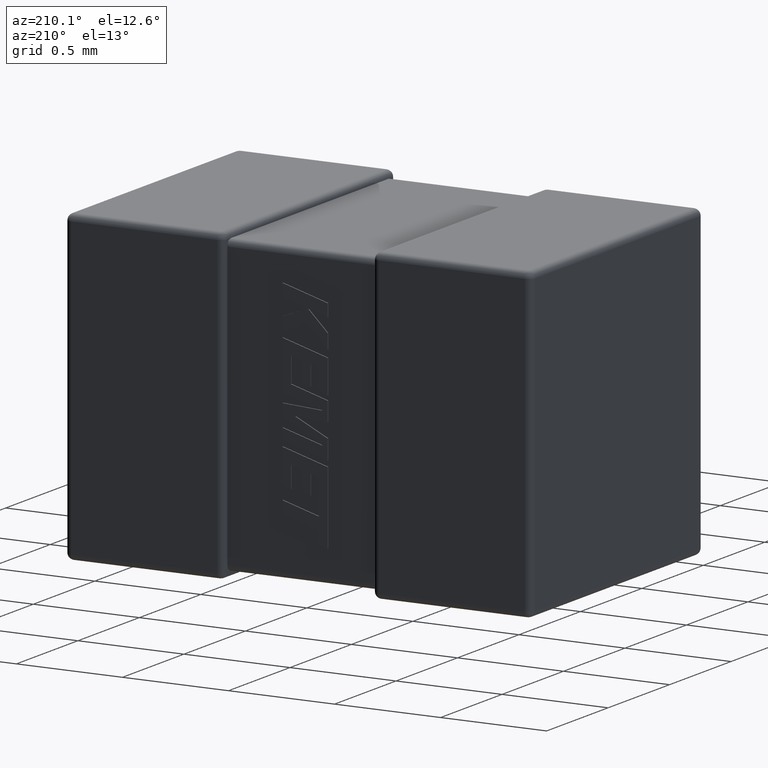
[diagram: clean part render]
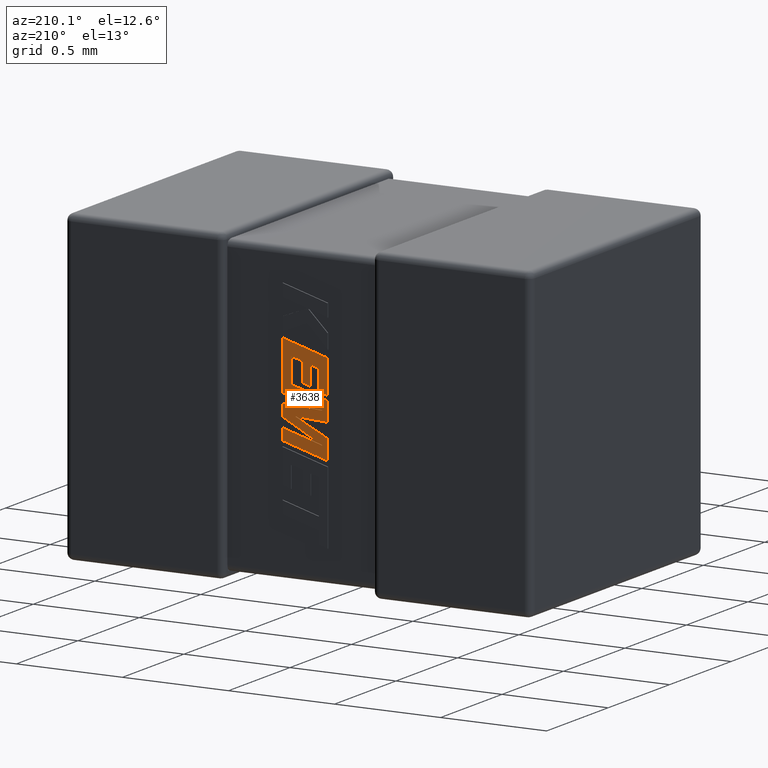
[diagram: same view with one face highlighted and labeled with its STEP entity id]
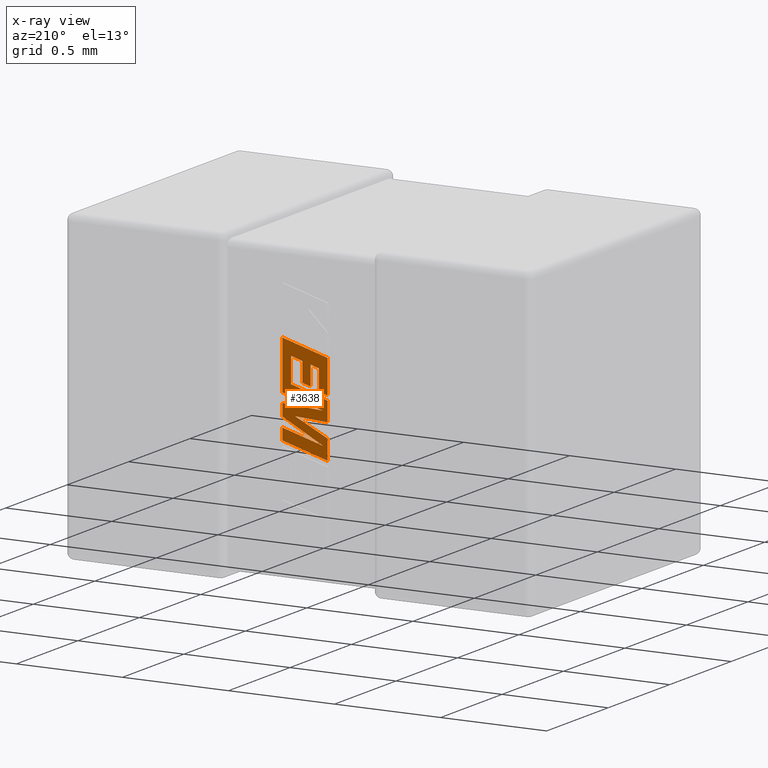
[diagram: x-ray of the same camera — body ghosted, the highlighted face saturated]
A machine part, auxiliary view. The second image highlights one B-rep face of the part: STEP entity #3638.
The next image is the same camera in x-ray: the body ghosted, the highlighted face saturated — about 0% of this face is hidden behind the body in this view.
In plain terms, the highlighted planar face has unit normal (0, -1, 0).
Its self-contained STEP definition (entity closure, byte-faithful):
#11 = LINE ( 'NONE', #1206, #3845 ) ;
#74 = CARTESIAN_POINT ( 'NONE',  ( 1.015409025108017671, 1.374840000000000062, -0.5203156576566413394 ) ) ;
#93 = EDGE_CURVE ( 'NONE', #3024, #649, #2750, .T. ) ;
#131 = CARTESIAN_POINT ( 'NONE',  ( 1.094464961500362321, 1.374840000000000062, -0.4975356530611448891 ) ) ;
#179 = LINE ( 'NONE', #1595, #3183 ) ;
#211 = DIRECTION ( 'NONE',  ( 0.000000000000000000, 0.000000000000000000, 1.000000000000000000 ) ) ;
#215 = CARTESIAN_POINT ( 'NONE',  ( 0.9748339648551366254, 1.374840000000000062, -0.6502224806510179533 ) ) ;
#221 = EDGE_CURVE ( 'NONE', #2082, #2583, #576, .T. ) ;
#223 = VECTOR ( 'NONE', #3756, 1000.000000000000227 ) ;
#240 = ORIENTED_EDGE ( 'NONE', *, *, #1883, .T. ) ;
#245 = VECTOR ( 'NONE', #2053, 1000.000000000000114 ) ;
#258 = LINE ( 'NONE', #3456, #223 ) ;
#260 = CARTESIAN_POINT ( 'NONE',  ( 0.9748339648551366254, 1.374840000000000062, -0.8083347367239003267 ) ) ;
#299 = EDGE_CURVE ( 'NONE', #1758, #3024, #902, .T. ) ;
#344 = DIRECTION ( 'NONE',  ( 0.9611542233438713501, 0.000000000000000000, 0.2760118818968482213 ) ) ;
#352 = EDGE_CURVE ( 'NONE', #1316, #1758, #1457, .T. ) ;
#364 = ORIENTED_EDGE ( 'NONE', *, *, #3814, .T. ) ;
#367 = EDGE_CURVE ( 'NONE', #2403, #4102, #3121, .T. ) ;
#371 = CARTESIAN_POINT ( 'NONE',  ( 1.015409025108017671, 1.374840000000000062, -0.6174362815830839457 ) ) ;
#375 = CARTESIAN_POINT ( 'NONE',  ( 1.188000000000003498, 1.374840000000000062, -0.7404661952629607580 ) ) ;
#384 = EDGE_CURVE ( 'NONE', #3827, #2746, #2487, .T. ) ;
#389 = ORIENTED_EDGE ( 'NONE', *, *, #93, .T. ) ;
#442 = EDGE_LOOP ( 'NONE', ( #515, #3050, #2345, #2785, #2269, #389, #1620, #364, #1552, #1265, #2026, #666, #4509, #240, #2134, #960, #2652, #3323, #3562, #2277, #4370, #2938, #3568 ) ) ;
#452 = CARTESIAN_POINT ( 'NONE',  ( -0.2425353559703316564, 1.374840000000000062, 0.003280988965688323017 ) ) ;
#503 = VECTOR ( 'NONE', #1230, 1000.000000000000227 ) ;
#508 = CARTESIAN_POINT ( 'NONE',  ( 1.188000000000003498, 1.374840000000000062, -0.4101399247972486450 ) ) ;
#515 = ORIENTED_EDGE ( 'NONE', *, *, #3334, .T. ) ;
#576 = LINE ( 'NONE', #1965, #1124 ) ;
#585 = CARTESIAN_POINT ( 'NONE',  ( 1.094464961500362321, 1.374840000000000062, -0.4975356530611448891 ) ) ;
#649 = VERTEX_POINT ( 'NONE', #2027 ) ;
#659 = LINE ( 'NONE', #4526, #2670 ) ;
#666 = ORIENTED_EDGE ( 'NONE', *, *, #2854, .T. ) ;
#685 = VECTOR ( 'NONE', #2129, 1000.000000000000000 ) ;
#687 = CARTESIAN_POINT ( 'NONE',  ( 1.094464961500362321, 1.374840000000000062, -0.5890160448136516624 ) ) ;
#722 = CARTESIAN_POINT ( 'NONE',  ( 1.015409025108017671, 1.374840000000000062, -0.6174362815830839457 ) ) ;
#731 = CARTESIAN_POINT ( 'NONE',  ( 1.127122519210145501, 1.374840000000000062, -0.7328045973124587276 ) ) ;
#790 = DIRECTION ( 'NONE',  ( 0.000000000000000000, 0.000000000000000000, -1.000000000000000000 ) ) ;
#812 = CARTESIAN_POINT ( 'NONE',  ( 0.9748339648551366254, 1.374840000000000062, -0.7410023534756597918 ) ) ;
#823 = LINE ( 'NONE', #2496, #1222 ) ;
#902 = LINE ( 'NONE', #215, #1496 ) ;
#948 = LINE ( 'NONE', #2029, #4139 ) ;
#950 = EDGE_CURVE ( 'NONE', #1699, #1316, #1071, .T. ) ;
#960 = ORIENTED_EDGE ( 'NONE', *, *, #2717, .T. ) ;
#998 = LINE ( 'NONE', #3167, #245 ) ;
#1071 = LINE ( 'NONE', #731, #3311 ) ;
#1097 = VERTEX_POINT ( 'NONE', #2584 ) ;
#1124 = VECTOR ( 'NONE', #2314, 1000.000000000000000 ) ;
#1148 = EDGE_CURVE ( 'NONE', #4102, #4551, #3731, .T. ) ;
#1190 = CARTESIAN_POINT ( 'NONE',  ( 1.015409025108017671, 1.374840000000000062, -0.5203156576566413394 ) ) ;
#1194 = FACE_OUTER_BOUND ( 'NONE', #442, .T. ) ;
#1198 = VECTOR ( 'NONE', #3807, 1000.000000000000000 ) ;
#1202 = VECTOR ( 'NONE', #790, 1000.000000000000000 ) ;
#1206 = CARTESIAN_POINT ( 'NONE',  ( 0.9748339648551366254, 1.374840000000000062, -0.6289604516652645971 ) ) ;
#1222 = VECTOR ( 'NONE', #2207, 1000.000000000000227 ) ;
#1224 = VERTEX_POINT ( 'NONE', #2346 ) ;
#1230 = DIRECTION ( 'NONE',  ( 0.9984327301130250243, 0.000000000000000000, 0.05596501978067342647 ) ) ;
#1231 = EDGE_CURVE ( 'NONE', #649, #3938, #3117, .T. ) ;
#1264 = CARTESIAN_POINT ( 'NONE',  ( 1.188000000000003498, 1.374840000000000062, -0.7863723184474802341 ) ) ;
#1265 = ORIENTED_EDGE ( 'NONE', *, *, #2913, .T. ) ;
#1316 = VERTEX_POINT ( 'NONE', #812 ) ;
#1320 = CARTESIAN_POINT ( 'NONE',  ( 1.055057873940854041, 1.374840000000000062, -0.6002718793269788966 ) ) ;
#1361 = VERTEX_POINT ( 'NONE', #3987 ) ;
#1454 = CARTESIAN_POINT ( 'NONE',  ( 1.147445032506710483, 1.374840000000000062, -0.6006076228641760162 ) ) ;
#1457 = LINE ( 'NONE', #2851, #1198 ) ;
#1480 = EDGE_CURVE ( 'NONE', #1224, #2855, #3770, .T. ) ;
#1496 = VECTOR ( 'NONE', #2375, 1000.000000000000114 ) ;
#1501 = DIRECTION ( 'NONE',  ( 0.000000000000000000, 0.000000000000000000, -1.000000000000000000 ) ) ;
#1505 = VERTEX_POINT ( 'NONE', #3357 ) ;
#1541 = VERTEX_POINT ( 'NONE', #4464 ) ;
#1545 = VECTOR ( 'NONE', #4372, 1000.000000000000000 ) ;
#1552 = ORIENTED_EDGE ( 'NONE', *, *, #2630, .T. ) ;
#1554 = CARTESIAN_POINT ( 'NONE',  ( 0.9982238819384064987, 1.374840000000000062, -0.6942755326709606489 ) ) ;
#1570 = EDGE_CURVE ( 'NONE', #4551, #1097, #258, .T. ) ;
#1595 = CARTESIAN_POINT ( 'NONE',  ( 1.055057873940854041, 1.374840000000000062, -0.6002718793269788966 ) ) ;
#1620 = ORIENTED_EDGE ( 'NONE', *, *, #1231, .T. ) ;
#1630 = VECTOR ( 'NONE', #3027, 1000.000000000000000 ) ;
#1672 = DIRECTION ( 'NONE',  ( 0.8958676361826827250, 0.000000000000000000, 0.4443210308329466063 ) ) ;
#1699 = VERTEX_POINT ( 'NONE', #1885 ) ;
#1742 = VERTEX_POINT ( 'NONE', #1320 ) ;
#1746 = CARTESIAN_POINT ( 'NONE',  ( 0.9748339648551366254, 1.374840000000000062, -0.6289604516652645971 ) ) ;
#1752 = CARTESIAN_POINT ( 'NONE',  ( 1.188000000000003498, 1.374840000000000062, -0.6397852638978243078 ) ) ;
#1757 = DIRECTION ( 'NONE',  ( -0.9619530280415479195, 0.000000000000000000, -0.2732148821746301914 ) ) ;
#1758 = VERTEX_POINT ( 'NONE', #2339 ) ;
#1780 = CARTESIAN_POINT ( 'NONE',  ( 1.188000000000003498, 1.374840000000000062, -0.6836380366425458543 ) ) ;
#1821 = LINE ( 'NONE', #371, #3306 ) ;
#1836 = PLANE ( 'NONE',  #1843 ) ;
#1843 = AXIS2_PLACEMENT_3D ( 'NONE', #452, #2174, #1501 ) ;
#1862 = VECTOR ( 'NONE', #3820, 1000.000000000000227 ) ;
#1883 = EDGE_CURVE ( 'NONE', #2996, #1224, #11, .T. ) ;
#1885 = CARTESIAN_POINT ( 'NONE',  ( 1.127122519210145501, 1.374840000000000062, -0.7328045973124587276 ) ) ;
#1965 = CARTESIAN_POINT ( 'NONE',  ( 1.188000000000003498, 1.374840000000000062, -0.6836380366425458543 ) ) ;
#2016 = EDGE_CURVE ( 'NONE', #2583, #2403, #998, .T. ) ;
#2018 = VECTOR ( 'NONE', #1672, 1000.000000000000114 ) ;
#2026 = ORIENTED_EDGE ( 'NONE', *, *, #2052, .T. ) ;
#2027 = CARTESIAN_POINT ( 'NONE',  ( 1.147445032506710483, 1.374840000000000062, -0.4824401569298813475 ) ) ;
#2029 = CARTESIAN_POINT ( 'NONE',  ( 0.9748339648551366254, 1.374840000000000062, -0.9018279099372659147 ) ) ;
#2052 = EDGE_CURVE ( 'NONE', #1361, #3870, #823, .T. ) ;
#2053 = DIRECTION ( 'NONE',  ( -0.8843386665637650301, 0.000000000000000000, -0.4668459304955136502 ) ) ;
#2082 = VERTEX_POINT ( 'NONE', #1780 ) ;
#2083 = VECTOR ( 'NONE', #344, 999.9999999999998863 ) ;
#2129 = DIRECTION ( 'NONE',  ( -0.9611638845408968512, 0.000000000000000000, -0.2759782365590690567 ) ) ;
#2132 = DIRECTION ( 'NONE',  ( -0.9985542843760948362, 0.000000000000000000, -0.05375259206908060416 ) ) ;
#2134 = ORIENTED_EDGE ( 'NONE', *, *, #1480, .T. ) ;
#2174 = DIRECTION ( 'NONE',  ( 0.000000000000000000, -1.000000000000000000, 0.000000000000000000 ) ) ;
#2207 = DIRECTION ( 'NONE',  ( -0.9601763114327565019, 0.000000000000000000, -0.2793947940878393488 ) ) ;
#2245 = CARTESIAN_POINT ( 'NONE',  ( 1.188000000000003498, 1.374840000000000062, -0.8405411030607993217 ) ) ;
#2269 = ORIENTED_EDGE ( 'NONE', *, *, #299, .T. ) ;
#2277 = ORIENTED_EDGE ( 'NONE', *, *, #2016, .T. ) ;
#2278 = LINE ( 'NONE', #74, #1202 ) ;
#2314 = DIRECTION ( 'NONE',  ( 0.000000000000000000, 0.000000000000000000, -1.000000000000000000 ) ) ;
#2339 = CARTESIAN_POINT ( 'NONE',  ( 0.9748339648551366254, 1.374840000000000062, -0.6502224806510179533 ) ) ;
#2345 = ORIENTED_EDGE ( 'NONE', *, *, #950, .T. ) ;
#2346 = CARTESIAN_POINT ( 'NONE',  ( 0.9748339648551366254, 1.374840000000000062, -0.4714805285893743925 ) ) ;
#2375 = DIRECTION ( 'NONE',  ( 0.9610853065513847993, 0.000000000000000000, 0.2762517575166369976 ) ) ;
#2403 = VERTEX_POINT ( 'NONE', #2970 ) ;
#2410 = CARTESIAN_POINT ( 'NONE',  ( 1.147445032506710483, 1.374840000000000062, -0.6006076228641760162 ) ) ;
#2414 = LINE ( 'NONE', #687, #1862 ) ;
#2487 = LINE ( 'NONE', #1752, #685 ) ;
#2496 = CARTESIAN_POINT ( 'NONE',  ( 1.055057873940854041, 1.374840000000000062, -0.5087785245035225667 ) ) ;
#2583 = VERTEX_POINT ( 'NONE', #375 ) ;
#2584 = CARTESIAN_POINT ( 'NONE',  ( 0.9748339648551366254, 1.374840000000000062, -0.9018279099372659147 ) ) ;
#2599 = VECTOR ( 'NONE', #4042, 1000.000000000000114 ) ;
#2630 = EDGE_CURVE ( 'NONE', #1541, #1742, #2414, .T. ) ;
#2652 = ORIENTED_EDGE ( 'NONE', *, *, #384, .T. ) ;
#2670 = VECTOR ( 'NONE', #2793, 1000.000000000000000 ) ;
#2717 = EDGE_CURVE ( 'NONE', #2855, #3827, #659, .T. ) ;
#2746 = VERTEX_POINT ( 'NONE', #3451 ) ;
#2750 = LINE ( 'NONE', #2410, #3232 ) ;
#2785 = ORIENTED_EDGE ( 'NONE', *, *, #352, .T. ) ;
#2793 = DIRECTION ( 'NONE',  ( 0.000000000000000000, 0.000000000000000000, -1.000000000000000000 ) ) ;
#2851 = CARTESIAN_POINT ( 'NONE',  ( 0.9748339648551366254, 1.374840000000000062, -0.7410023534756597918 ) ) ;
#2854 = EDGE_CURVE ( 'NONE', #3870, #3002, #2278, .T. ) ;
#2855 = VERTEX_POINT ( 'NONE', #508 ) ;
#2913 = EDGE_CURVE ( 'NONE', #1742, #1361, #179, .T. ) ;
#2938 = ORIENTED_EDGE ( 'NONE', *, *, #1148, .T. ) ;
#2970 = CARTESIAN_POINT ( 'NONE',  ( 0.9973099854362785788, 1.374840000000000062, -0.8411322190964737322 ) ) ;
#2981 = CARTESIAN_POINT ( 'NONE',  ( 0.9748339648551366254, 1.374840000000000062, -0.4714805285893743925 ) ) ;
#2986 = DIRECTION ( 'NONE',  ( 0.000000000000000000, 0.000000000000000000, 1.000000000000000000 ) ) ;
#2996 = VERTEX_POINT ( 'NONE', #1746 ) ;
#3002 = VERTEX_POINT ( 'NONE', #722 ) ;
#3024 = VERTEX_POINT ( 'NONE', #1454 ) ;
#3027 = DIRECTION ( 'NONE',  ( 0.000000000000000000, 0.000000000000000000, -1.000000000000000000 ) ) ;
#3050 = ORIENTED_EDGE ( 'NONE', *, *, #3337, .T. ) ;
#3117 = LINE ( 'NONE', #4535, #3389 ) ;
#3121 = LINE ( 'NONE', #4182, #2083 ) ;
#3128 = DIRECTION ( 'NONE',  ( 0.000000000000000000, 0.000000000000000000, 1.000000000000000000 ) ) ;
#3167 = CARTESIAN_POINT ( 'NONE',  ( 1.188000000000003498, 1.374840000000000062, -0.7404661952629607580 ) ) ;
#3183 = VECTOR ( 'NONE', #2986, 1000.000000000000000 ) ;
#3232 = VECTOR ( 'NONE', #3817, 1000.000000000000000 ) ;
#3271 = LINE ( 'NONE', #1554, #503 ) ;
#3306 = VECTOR ( 'NONE', #1757, 1000.000000000000000 ) ;
#3311 = VECTOR ( 'NONE', #2132, 1000.000000000000114 ) ;
#3315 = CARTESIAN_POINT ( 'NONE',  ( 1.188000000000003498, 1.374840000000000062, -0.6397852638978243078 ) ) ;
#3323 = ORIENTED_EDGE ( 'NONE', *, *, #3855, .T. ) ;
#3334 = EDGE_CURVE ( 'NONE', #1097, #1505, #948, .T. ) ;
#3337 = EDGE_CURVE ( 'NONE', #1505, #1699, #3418, .T. ) ;
#3357 = CARTESIAN_POINT ( 'NONE',  ( 0.9748339648551366254, 1.374840000000000062, -0.8083347367239003267 ) ) ;
#3389 = VECTOR ( 'NONE', #3781, 1000.000000000000114 ) ;
#3418 = LINE ( 'NONE', #260, #2018 ) ;
#3451 = CARTESIAN_POINT ( 'NONE',  ( 0.9982238819384064987, 1.374840000000000062, -0.6942755326709606489 ) ) ;
#3456 = CARTESIAN_POINT ( 'NONE',  ( 1.188000000000003498, 1.374840000000000062, -0.8405411030607993217 ) ) ;
#3562 = ORIENTED_EDGE ( 'NONE', *, *, #221, .T. ) ;
#3568 = ORIENTED_EDGE ( 'NONE', *, *, #1570, .T. ) ;
#3621 = LINE ( 'NONE', #131, #1545 ) ;
#3638 = ADVANCED_FACE ( 'NONE', ( #1194 ), #1836, .F. ) ;
#3668 = CARTESIAN_POINT ( 'NONE',  ( 1.188000000000003498, 1.374840000000000062, -0.7863723184474802341 ) ) ;
#3731 = LINE ( 'NONE', #3668, #1630 ) ;
#3756 = DIRECTION ( 'NONE',  ( -0.9610674221107078363, 0.000000000000000000, -0.2763139702539094134 ) ) ;
#3770 = LINE ( 'NONE', #2981, #2599 ) ;
#3781 = DIRECTION ( 'NONE',  ( -0.9617234872620624708, 0.000000000000000000, -0.2740217765953967821 ) ) ;
#3807 = DIRECTION ( 'NONE',  ( 0.000000000000000000, 0.000000000000000000, 1.000000000000000000 ) ) ;
#3814 = EDGE_CURVE ( 'NONE', #3938, #1541, #3621, .T. ) ;
#3817 = DIRECTION ( 'NONE',  ( 0.000000000000000000, 0.000000000000000000, 1.000000000000000000 ) ) ;
#3820 = DIRECTION ( 'NONE',  ( -0.9615454294334448981, 0.000000000000000000, -0.2746459304917006072 ) ) ;
#3827 = VERTEX_POINT ( 'NONE', #3315 ) ;
#3845 = VECTOR ( 'NONE', #3128, 1000.000000000000000 ) ;
#3855 = EDGE_CURVE ( 'NONE', #2746, #2082, #3271, .T. ) ;
#3870 = VERTEX_POINT ( 'NONE', #1190 ) ;
#3938 = VERTEX_POINT ( 'NONE', #585 ) ;
#3987 = CARTESIAN_POINT ( 'NONE',  ( 1.055057873940854041, 1.374840000000000062, -0.5087785245035225667 ) ) ;
#4042 = DIRECTION ( 'NONE',  ( 0.9610029908221285888, 0.000000000000000000, 0.2765379750249931101 ) ) ;
#4102 = VERTEX_POINT ( 'NONE', #1264 ) ;
#4139 = VECTOR ( 'NONE', #211, 1000.000000000000000 ) ;
#4182 = CARTESIAN_POINT ( 'NONE',  ( 0.9973099854362785788, 1.374840000000000062, -0.8411322190964737322 ) ) ;
#4230 = EDGE_CURVE ( 'NONE', #3002, #2996, #1821, .T. ) ;
#4370 = ORIENTED_EDGE ( 'NONE', *, *, #367, .T. ) ;
#4372 = DIRECTION ( 'NONE',  ( 0.000000000000000000, 0.000000000000000000, -1.000000000000000000 ) ) ;
#4464 = CARTESIAN_POINT ( 'NONE',  ( 1.094464961500362321, 1.374840000000000062, -0.5890160448136516624 ) ) ;
#4509 = ORIENTED_EDGE ( 'NONE', *, *, #4230, .T. ) ;
#4526 = CARTESIAN_POINT ( 'NONE',  ( 1.188000000000003498, 1.374840000000000062, -0.4101399247972486450 ) ) ;
#4535 = CARTESIAN_POINT ( 'NONE',  ( 1.147445032506710483, 1.374840000000000062, -0.4824401569298813475 ) ) ;
#4551 = VERTEX_POINT ( 'NONE', #2245 ) ;